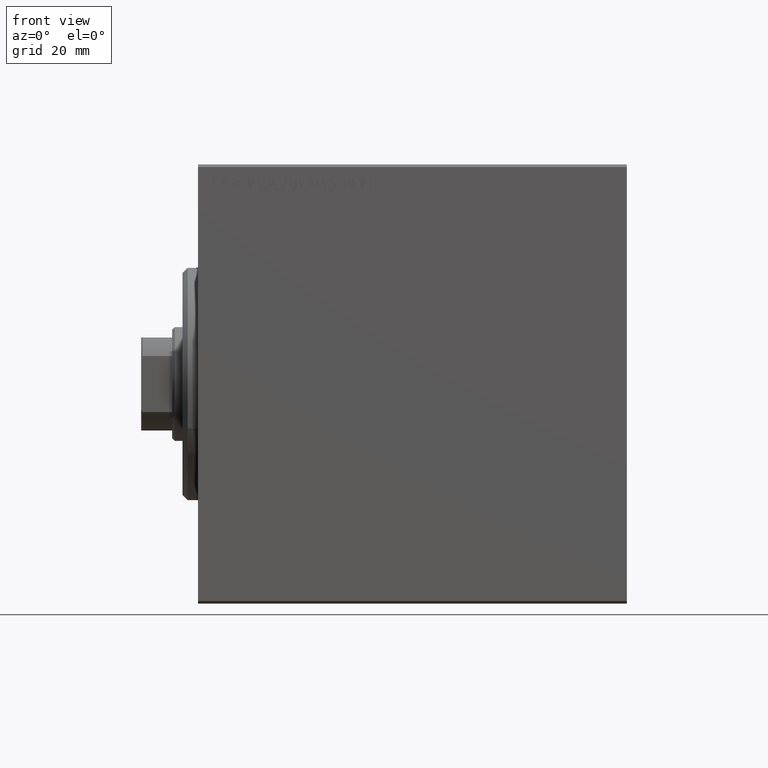
[diagram: clean part render]
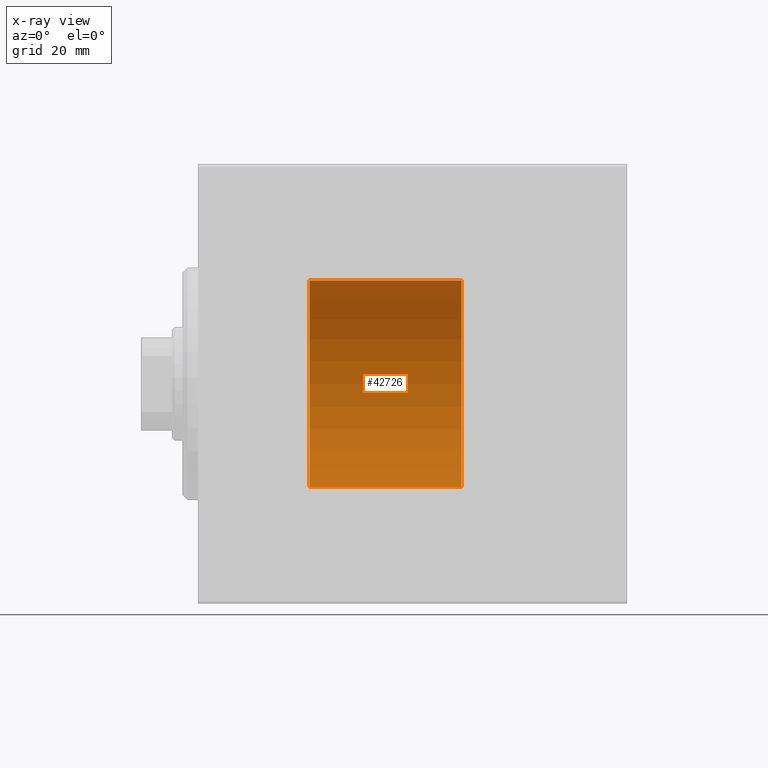
[diagram: x-ray — body ghosted, one internal face saturated and labeled with its STEP entity id]
A machine part, front view, then the same camera in x-ray: the body is ghosted and one INTERNAL B-rep face — a face not visible from any outside direction — is saturated and labeled: STEP entity #42726.
In plain terms, the highlighted cylindrical surface (partial cylindrical patch) has radius 20 mm, axis along (-1, -0, -0).
Its self-contained STEP definition (entity closure, byte-faithful):
#2219 = LINE ( 'NONE', #12591, #15915 ) ;
#2504 = EDGE_CURVE ( 'NONE', #30915, #34472, #35820, .T. ) ;
#2752 = CIRCLE ( 'NONE', #9776, 20.00000000000000000 ) ;
#4072 = DIRECTION ( 'NONE',  ( 0.000000000000000000, 0.000000000000000000, 1.000000000000000000 ) ) ;
#6937 = DIRECTION ( 'NONE',  ( -1.000000000000000000, 0.000000000000000000, 0.000000000000000000 ) ) ;
#9776 = AXIS2_PLACEMENT_3D ( 'NONE', #43029, #15841, #16702 ) ;
#11803 = CARTESIAN_POINT ( 'NONE',  ( 51.00000000000000000, 0.000000000000000000, 20.00000000000000000 ) ) ;
#11890 = AXIS2_PLACEMENT_3D ( 'NONE', #37264, #6937, #4072 ) ;
#12411 = EDGE_LOOP ( 'NONE', ( #28783, #43577, #14487, #29103 ) ) ;
#12591 = CARTESIAN_POINT ( 'NONE',  ( 51.00000000000000000, 0.000000000000000000, 20.00000000000000000 ) ) ;
#13051 = FACE_OUTER_BOUND ( 'NONE', #12411, .T. ) ;
#13271 = DIRECTION ( 'NONE',  ( -1.000000000000000000, -0.000000000000000000, -0.000000000000000000 ) ) ;
#14487 = ORIENTED_EDGE ( 'NONE', *, *, #21355, .T. ) ;
#14788 = VERTEX_POINT ( 'NONE', #22767 ) ;
#15705 = DIRECTION ( 'NONE',  ( -1.000000000000000000, -0.000000000000000000, -0.000000000000000000 ) ) ;
#15841 = DIRECTION ( 'NONE',  ( -1.000000000000000000, 0.000000000000000000, 0.000000000000000000 ) ) ;
#15915 = VECTOR ( 'NONE', #15705, 1000.000000000000000 ) ;
#16120 = CARTESIAN_POINT ( 'NONE',  ( 51.00000000000000000, 2.449293598294706513E-15, -20.00000000000000000 ) ) ;
#16378 = DIRECTION ( 'NONE',  ( 0.000000000000000000, 0.000000000000000000, 1.000000000000000000 ) ) ;
#16702 = DIRECTION ( 'NONE',  ( 0.000000000000000000, 0.000000000000000000, 1.000000000000000000 ) ) ;
#21355 = EDGE_CURVE ( 'NONE', #23754, #14788, #2219, .T. ) ;
#22767 = CARTESIAN_POINT ( 'NONE',  ( 21.60000000000000142, 0.000000000000000000, 20.00000000000000000 ) ) ;
#23215 = CYLINDRICAL_SURFACE ( 'NONE', #29010, 20.00000000000000000 ) ;
#23754 = VERTEX_POINT ( 'NONE', #11803 ) ;
#23773 = CARTESIAN_POINT ( 'NONE',  ( 51.00000000000000000, 2.449293598294706513E-15, -20.00000000000000000 ) ) ;
#24771 = VECTOR ( 'NONE', #43089, 1000.000000000000000 ) ;
#25966 = CARTESIAN_POINT ( 'NONE',  ( 21.60000000000000142, 2.449293598294706513E-15, -20.00000000000000000 ) ) ;
#28783 = ORIENTED_EDGE ( 'NONE', *, *, #2504, .F. ) ;
#29010 = AXIS2_PLACEMENT_3D ( 'NONE', #29217, #13271, #16378 ) ;
#29103 = ORIENTED_EDGE ( 'NONE', *, *, #36035, .T. ) ;
#29217 = CARTESIAN_POINT ( 'NONE',  ( 51.00000000000000000, 0.000000000000000000, 0.000000000000000000 ) ) ;
#30915 = VERTEX_POINT ( 'NONE', #23773 ) ;
#34472 = VERTEX_POINT ( 'NONE', #25966 ) ;
#35235 = EDGE_CURVE ( 'NONE', #23754, #30915, #35250, .T. ) ;
#35250 = CIRCLE ( 'NONE', #11890, 20.00000000000000000 ) ;
#35820 = LINE ( 'NONE', #16120, #24771 ) ;
#36035 = EDGE_CURVE ( 'NONE', #14788, #34472, #2752, .T. ) ;
#37264 = CARTESIAN_POINT ( 'NONE',  ( 51.00000000000000000, 0.000000000000000000, 0.000000000000000000 ) ) ;
#42726 = ADVANCED_FACE ( 'NONE', ( #13051 ), #23215, .F. ) ;
#43029 = CARTESIAN_POINT ( 'NONE',  ( 21.60000000000000142, 0.000000000000000000, 0.000000000000000000 ) ) ;
#43089 = DIRECTION ( 'NONE',  ( -1.000000000000000000, -0.000000000000000000, -0.000000000000000000 ) ) ;
#43577 = ORIENTED_EDGE ( 'NONE', *, *, #35235, .F. ) ;